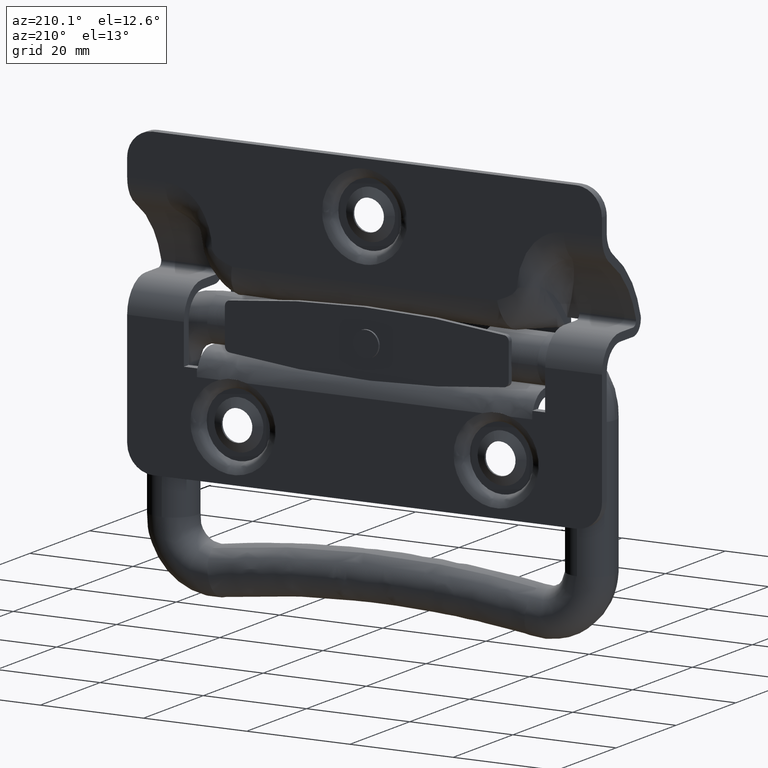
[diagram: clean part render]
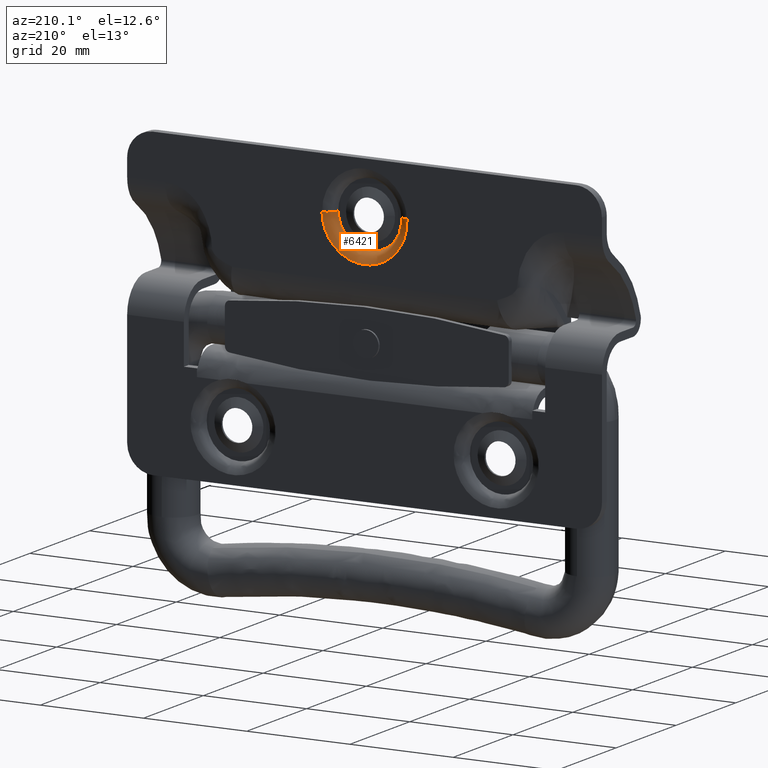
[diagram: same view with one face highlighted and labeled with its STEP entity id]
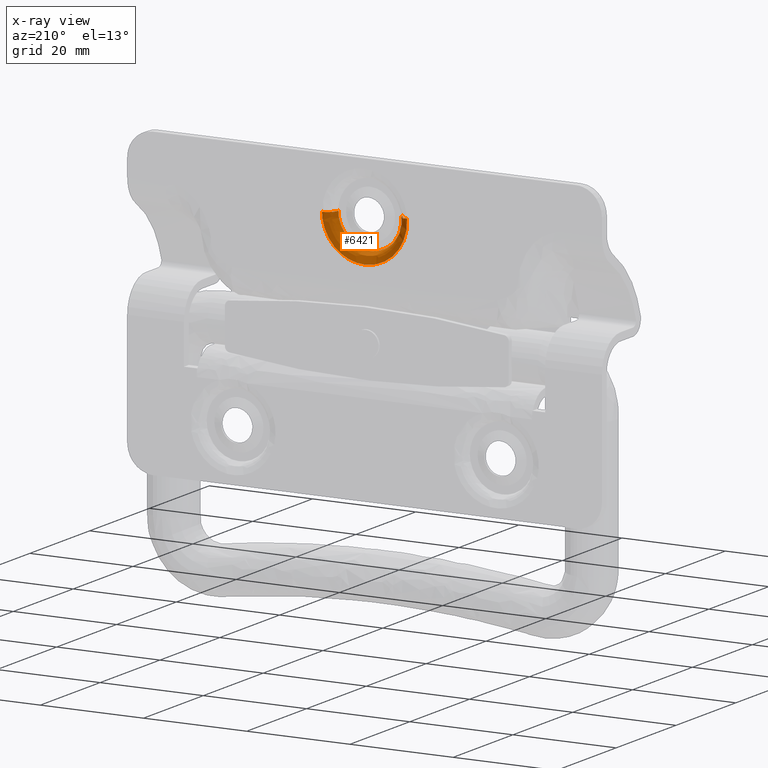
[diagram: x-ray of the same camera — body ghosted, the highlighted face saturated]
A machine part, auxiliary view. The second image highlights one B-rep face of the part: STEP entity #6421.
The next image is the same camera in x-ray: the body ghosted, the highlighted face saturated — about 0% of this face is hidden behind the body in this view.
In plain terms, the highlighted face is a freeform B-spline surface patch.
Its self-contained STEP definition (entity closure, byte-faithful):
#6296=CARTESIAN_POINT('',(-6.239614986181178,3.960925539898867,22.436170076591768));
#6297=CARTESIAN_POINT('',(-6.252097974336053,3.960925539898864,22.257595148728509));
#6298=CARTESIAN_POINT('',(-6.254347429901619,3.960925539898865,22.078598585062352));
#6299=CARTESIAN_POINT('',(-6.332946014963969,3.960925539898865,15.824251155160738));
#6300=CARTESIAN_POINT('',(-0.078598585062352,3.960925539898865,15.745652570098375));
#6301=CARTESIAN_POINT('',(6.175748844839266,3.960925539898865,15.667053985036031));
#6302=CARTESIAN_POINT('',(6.254347429901619,3.960925539898865,21.921401414937645));
#6303=CARTESIAN_POINT('',(-6.080088408481926,6.255074517818088,22.425018632188927));
#6304=CARTESIAN_POINT('',(-6.092252247396949,6.255074517818087,22.251009282036492));
#6305=CARTESIAN_POINT('',(-6.094444191730033,6.255074517818087,22.076589075931622));
#6306=CARTESIAN_POINT('',(-6.171033267661652,6.255074517818089,15.982144884201585));
#6307=CARTESIAN_POINT('',(-0.076589075931617,6.255074517818087,15.905555808269968));
#6308=CARTESIAN_POINT('',(6.017855115798417,6.255074517818089,15.828966732338349));
#6309=CARTESIAN_POINT('',(6.094444191730033,6.255074517818087,21.923410924068378));
#6310=CARTESIAN_POINT('',(-8.368652692857250,6.095158718046077,22.584996974027622));
#6311=CARTESIAN_POINT('',(-8.385395038766180,6.095158718046075,22.345489960494053));
#6312=CARTESIAN_POINT('',(-8.388412037798641,6.095158718046075,22.105417443543164));
#6313=CARTESIAN_POINT('',(-8.493829481341804,6.095158718046074,13.717005405744516));
#6314=CARTESIAN_POINT('',(-0.105417443543161,6.095158718046075,13.611587962201357));
#6315=CARTESIAN_POINT('',(8.282994594255481,6.095158718046074,13.506170518658193));
#6316=CARTESIAN_POINT('',(8.388412037798641,6.095158718046075,21.894582556456839));
#6324=(BOUNDED_SURFACE()B_SPLINE_SURFACE(2,2,((#6296,#6303,#6310),(#6297,#6304,#6311),(#6298,#6305,#6312),(#6299,#6306,#6313),(#6300,#6307,#6314),(#6301,#6308,#6315),(#6302,#6309,#6316)),.UNSPECIFIED.,.F.,.F.,.U.)B_SPLINE_SURFACE_WITH_KNOTS((3,2,2,3),(3,3),(0.0,0.555978412790057,14.455451988112451,28.354925563434840),(0.0,3.644748340711788),.UNSPECIFIED.)GEOMETRIC_REPRESENTATION_ITEM()RATIONAL_B_SPLINE_SURFACE(((0.889999349082569,0.584039722868742,0.889999337650040),(0.899812920648292,0.590479632766997,0.899812909089702),(0.910479845378619,0.597479534249828,0.910479833683006),(0.643806472800901,0.422481830288233,0.643806464530854),(0.910479845378619,0.597479534249828,0.910479833683006),(0.643806472800901,0.422481830288233,0.643806464530854),(0.910479845378619,0.597479534249828,0.910479833683006)))REPRESENTATION_ITEM('')SURFACE());
#6325=CARTESIAN_POINT('',(-6.234785461485917,4.100000000798794,22.435832822586629));
#6326=VERTEX_POINT('',#6325);
#6327=CARTESIAN_POINT('',(0.0,4.100000000000001,15.750000000000000));
#6328=VERTEX_POINT('',#6327);
#6329=CARTESIAN_POINT('',(-6.234785461485917,4.100000000798794,22.435832822586633));
#6330=CARTESIAN_POINT('',(-6.250000000000000,4.100000000000001,22.218181974457945));
#6331=CARTESIAN_POINT('',(-6.250000000000000,4.100000000000001,22.0));
#6332=CARTESIAN_POINT('',(-6.249999999999999,4.100000000000001,15.749999999999995));
#6333=CARTESIAN_POINT('',(0.0,4.100000000000001,15.750000000000000));
#6341=(BOUNDED_CURVE()B_SPLINE_CURVE(2,(#6329,#6330,#6331,#6332,#6333),.UNSPECIFIED.,.F.,.U.)B_SPLINE_CURVE_WITH_KNOTS((3,2,3),(0.737833686521887,0.750000000000000,1.0),.UNSPECIFIED.)CURVE()GEOMETRIC_REPRESENTATION_ITEM()RATIONAL_B_SPLINE_CURVE((0.972879876359048,0.985746277137208,1.0,0.707106781186547,1.0))REPRESENTATION_ITEM(''));
#6342=EDGE_CURVE('',#6326,#6328,#6341,.T.);
#6343=ORIENTED_EDGE('',*,*,#6342,.T.);
#6344=CARTESIAN_POINT('',(6.249506526272487,4.100000000784338,21.921462250620600));
#6345=VERTEX_POINT('',#6344);
#6346=CARTESIAN_POINT('',(0.0,4.100000000000001,15.750000000000000));
#6347=CARTESIAN_POINT('',(6.171949561706493,4.100000000000001,15.750000000000007));
#6348=CARTESIAN_POINT('',(6.249506526272487,4.100000000784338,21.921462250620593));
#6356=(BOUNDED_CURVE()B_SPLINE_CURVE(2,(#6346,#6347,#6348),.UNSPECIFIED.,.F.,.U.)B_SPLINE_CURVE_WITH_KNOTS((3,3),(0.0,0.247784295915625),.UNSPECIFIED.)CURVE()GEOMETRIC_REPRESENTATION_ITEM()RATIONAL_B_SPLINE_CURVE((1.0,0.709702639991391,0.994854295629964))REPRESENTATION_ITEM(''));
#6357=EDGE_CURVE('',#6328,#6345,#6356,.T.);
#6358=ORIENTED_EDGE('',*,*,#6357,.T.);
#6359=CARTESIAN_POINT('',(8.249348614652968,6.100000000000192,21.896330170967069));
#6360=VERTEX_POINT('',#6359);
#6361=CARTESIAN_POINT('',(6.249506526272488,4.100000000784337,21.921462250620593));
#6362=CARTESIAN_POINT('',(6.249506527842206,6.099999999943055,21.921462250709336));
#6363=CARTESIAN_POINT('',(8.249348614652968,6.100000000000192,21.896330170967072));
#6371=(BOUNDED_CURVE()B_SPLINE_CURVE(2,(#6361,#6362,#6363),.UNSPECIFIED.,.F.,.U.)B_SPLINE_CURVE_WITH_KNOTS((3,3),(-1.725134642477580,-0.274865356747485),.UNSPECIFIED.)CURVE()GEOMETRIC_REPRESENTATION_ITEM()RATIONAL_B_SPLINE_CURVE((0.883342149366112,0.624617224276281,0.883342149642606))REPRESENTATION_ITEM(''));
#6372=EDGE_CURVE('',#6345,#6360,#6371,.T.);
#6373=ORIENTED_EDGE('',*,*,#6372,.T.);
#6374=CARTESIAN_POINT('',(0.0,6.100000000000191,13.750000000000000));
#6375=VERTEX_POINT('',#6374);
#6376=CARTESIAN_POINT('',(0.0,6.100000000000191,13.750000000000000));
#6377=CARTESIAN_POINT('',(8.146973421743978,6.100000000000191,13.750000000000000));
#6378=CARTESIAN_POINT('',(8.249348614652968,6.100000000000192,21.896330170967076));
#6386=(BOUNDED_CURVE()B_SPLINE_CURVE(2,(#6376,#6377,#6378),.UNSPECIFIED.,.F.,.U.)B_SPLINE_CURVE_WITH_KNOTS((3,3),(0.0,0.247784295921915),.UNSPECIFIED.)CURVE()GEOMETRIC_REPRESENTATION_ITEM()RATIONAL_B_SPLINE_CURVE((1.0,0.709702639984022,0.994854295644441))REPRESENTATION_ITEM(''));
#6387=EDGE_CURVE('',#6375,#6360,#6386,.T.);
#6388=ORIENTED_EDGE('',*,*,#6387,.F.);
#6389=CARTESIAN_POINT('',(-8.229916809179647,6.100000000000192,22.575299325498911));
#6390=VERTEX_POINT('',#6389);
#6391=CARTESIAN_POINT('',(-8.229916809179647,6.100000000000192,22.575299325498914));
#6392=CARTESIAN_POINT('',(-8.250000000000000,6.100000000000192,22.288000205968164));
#6393=CARTESIAN_POINT('',(-8.250000000000000,6.100000000000191,22.0));
#6394=CARTESIAN_POINT('',(-8.250000000000000,6.100000000000191,13.750000000000000));
#6395=CARTESIAN_POINT('',(0.0,6.100000000000191,13.750000000000000));
#6403=(BOUNDED_CURVE()B_SPLINE_CURVE(2,(#6391,#6392,#6393,#6394,#6395),.UNSPECIFIED.,.F.,.U.)B_SPLINE_CURVE_WITH_KNOTS((3,2,3),(0.737833686535060,0.750000000000000,1.0),.UNSPECIFIED.)CURVE()GEOMETRIC_REPRESENTATION_ITEM()RATIONAL_B_SPLINE_CURVE((0.972879876386909,0.985746277152641,1.0,0.707106781186548,1.0))REPRESENTATION_ITEM(''));
#6404=EDGE_CURVE('',#6390,#6375,#6403,.T.);
#6405=ORIENTED_EDGE('',*,*,#6404,.F.);
#6406=CARTESIAN_POINT('',(-6.234785461485918,4.100000000798794,22.435832822586637));
#6407=CARTESIAN_POINT('',(-6.234785463096204,6.099999999992587,22.435832822457911));
#6408=CARTESIAN_POINT('',(-8.229916809179647,6.100000000000192,22.575299325498914));
#6416=(BOUNDED_CURVE()B_SPLINE_CURVE(2,(#6406,#6407,#6408),.UNSPECIFIED.,.F.,.U.)B_SPLINE_CURVE_WITH_KNOTS((3,3),(-1.725134642462756,-0.274865356722086),.UNSPECIFIED.)CURVE()GEOMETRIC_REPRESENTATION_ITEM()RATIONAL_B_SPLINE_CURVE((0.863472075087040,0.610566960004772,0.863472075371342))REPRESENTATION_ITEM(''));
#6417=EDGE_CURVE('',#6326,#6390,#6416,.T.);
#6418=ORIENTED_EDGE('',*,*,#6417,.F.);
#6419=EDGE_LOOP('',(#6343,#6358,#6373,#6388,#6405,#6418));
#6420=FACE_OUTER_BOUND('',#6419,.T.);
#6421=ADVANCED_FACE('',(#6420),#6324,.T.);